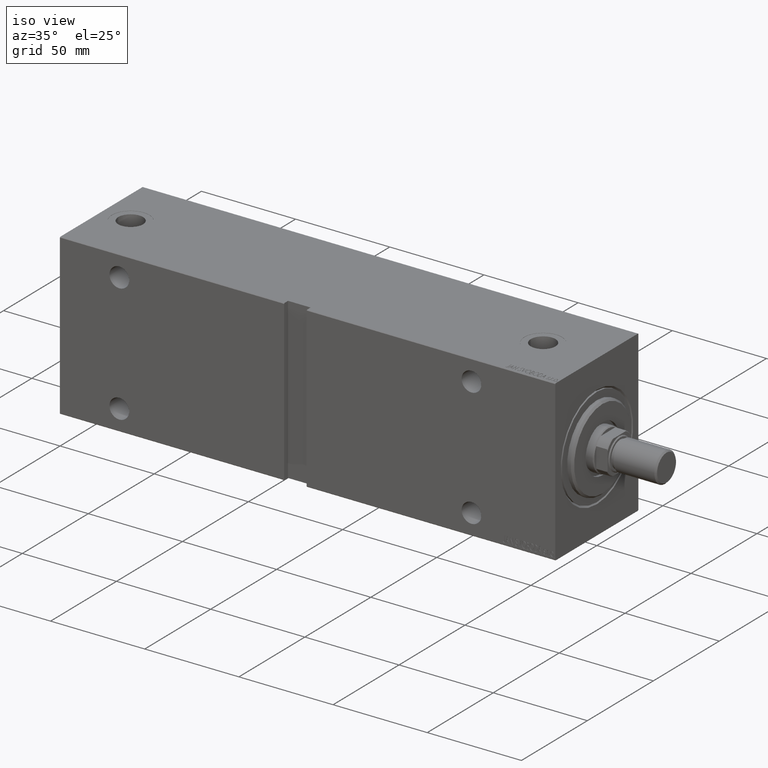
[diagram: clean part render]
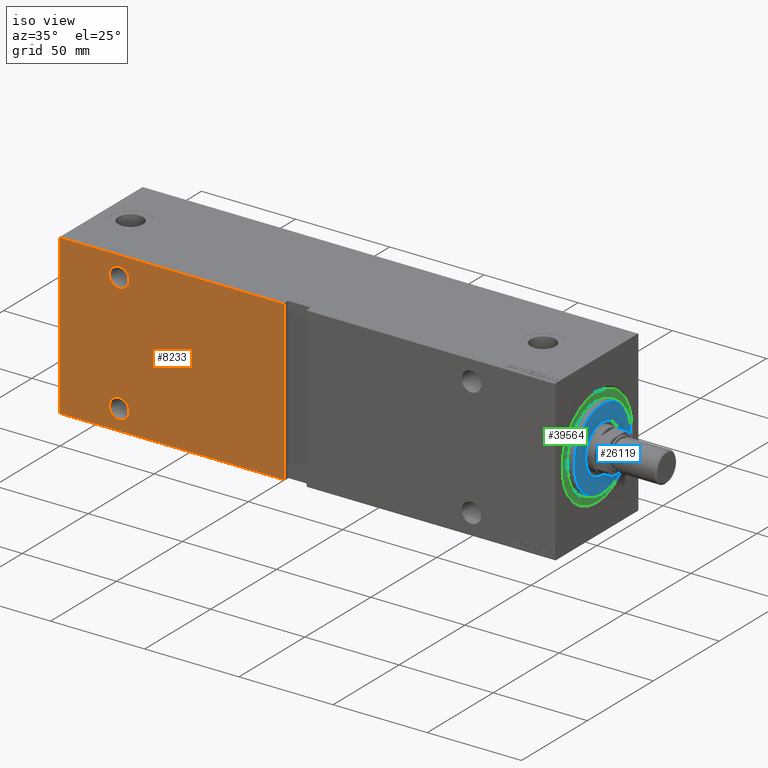
[diagram: same view with three faces highlighted in distinct colors, each labeled with its STEP entity id]
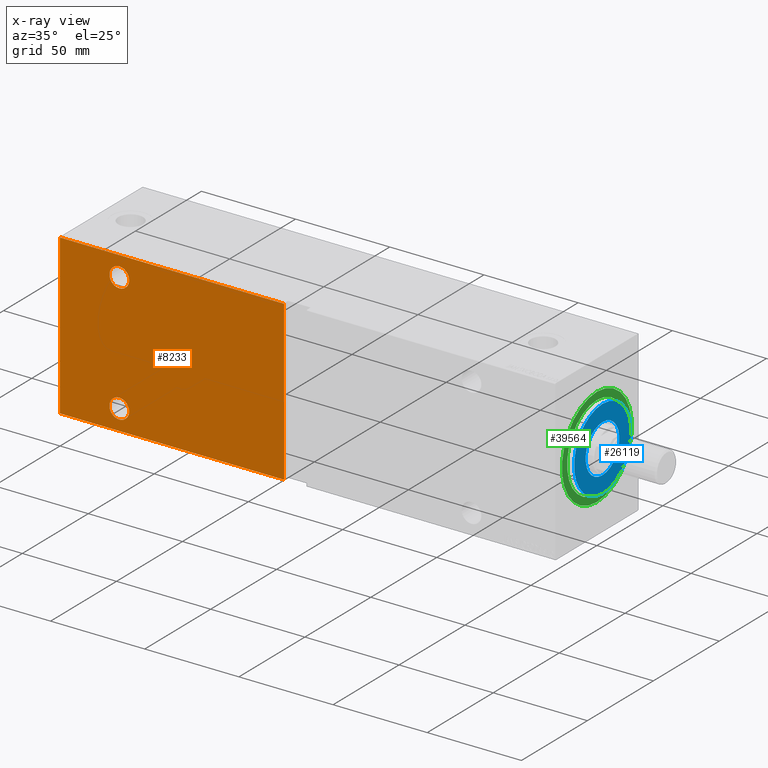
[diagram: x-ray of the same camera — body ghosted, the three highlighted faces saturated]
A machine part, iso view with three faces highlighted in distinct colors.
The next image is the same camera in x-ray (body ghosted, the three faces saturated) — at least one of them is partly hidden behind the body in this view.
Their STEP definitions:

[orange] entity #8233 — the highlighted planar face has unit normal (-0, 1, -0).
#56 = VERTEX_POINT ( 'NONE', #19333 ) ;
#656 = VECTOR ( 'NONE', #2430, 1000.000000000000000 ) ;
#840 = DIRECTION ( 'NONE',  ( 0.000000000000000000, 0.000000000000000000, -1.000000000000000000 ) ) ;
#895 = FACE_OUTER_BOUND ( 'NONE', #37573, .T. ) ;
#1253 = AXIS2_PLACEMENT_3D ( 'NONE', #14971, #41263, #840 ) ;
#1747 = EDGE_CURVE ( 'NONE', #16985, #24470, #22553, .T. ) ;
#2035 = CARTESIAN_POINT ( 'NONE',  ( 231.4999999999999716, 31.50000000000000000, 26.25000000000000355 ) ) ;
#2430 = DIRECTION ( 'NONE',  ( -0.000000000000000000, 1.632680918566406793E-16, -1.000000000000000000 ) ) ;
#4429 = DIRECTION ( 'NONE',  ( 0.000000000000000000, 1.632680918566406054E-16, -1.000000000000000000 ) ) ;
#4494 = CARTESIAN_POINT ( 'NONE',  ( 263.0000000000000000, 31.50000000000000000, 42.19999999999998863 ) ) ;
#4813 = CARTESIAN_POINT ( 'NONE',  ( 263.0000000000000000, 31.50000000000001421, -42.20000000000001705 ) ) ;
#5462 = VERTEX_POINT ( 'NONE', #2035 ) ;
#6749 = ORIENTED_EDGE ( 'NONE', *, *, #34439, .T. ) ;
#6797 = EDGE_CURVE ( 'NONE', #5462, #20673, #38903, .T. ) ;
#7070 = VECTOR ( 'NONE', #20496, 1000.000000000000000 ) ;
#7599 = CIRCLE ( 'NONE', #1253, 5.250000000000004441 ) ;
#7997 = CARTESIAN_POINT ( 'NONE',  ( 144.0000000000000284, 31.50000000000001421, -42.20000000000001705 ) ) ;
#8233 = ADVANCED_FACE ( 'NONE', ( #8381, #21222, #895 ), #38016, .F. ) ;
#8381 = FACE_BOUND ( 'NONE', #37874, .T. ) ;
#10274 = CARTESIAN_POINT ( 'NONE',  ( 231.5000000000000284, 31.50000000000001421, -31.49999999999999289 ) ) ;
#11087 = EDGE_CURVE ( 'NONE', #16985, #23923, #25387, .T. ) ;
#11238 = DIRECTION ( 'NONE',  ( 1.000000000000000000, 0.000000000000000000, 0.000000000000000000 ) ) ;
#11692 = VERTEX_POINT ( 'NONE', #39403 ) ;
#12201 = EDGE_CURVE ( 'NONE', #56, #11692, #23514, .T. ) ;
#13976 = DIRECTION ( 'NONE',  ( 0.000000000000000000, 0.000000000000000000, -1.000000000000000000 ) ) ;
#14971 = CARTESIAN_POINT ( 'NONE',  ( 231.4999999999999716, 31.50000000000000000, 31.50000000000000711 ) ) ;
#15219 = CARTESIAN_POINT ( 'NONE',  ( 231.5000000000000284, 31.50000000000001421, -31.49999999999999289 ) ) ;
#15241 = ORIENTED_EDGE ( 'NONE', *, *, #11087, .T. ) ;
#15448 = DIRECTION ( 'NONE',  ( 0.000000000000000000, 0.000000000000000000, -1.000000000000000000 ) ) ;
#16586 = ORIENTED_EDGE ( 'NONE', *, *, #42054, .T. ) ;
#16726 = CARTESIAN_POINT ( 'NONE',  ( 263.0000000000000000, 31.50000000000001421, -42.50000000000000711 ) ) ;
#16985 = VERTEX_POINT ( 'NONE', #32088 ) ;
#17081 = DIRECTION ( 'NONE',  ( 0.000000000000000000, -1.000000000000000000, -1.632680918566406054E-16 ) ) ;
#17244 = ORIENTED_EDGE ( 'NONE', *, *, #32443, .T. ) ;
#18472 = LINE ( 'NONE', #21350, #18744 ) ;
#18744 = VECTOR ( 'NONE', #22001, 1000.000000000000000 ) ;
#19333 = CARTESIAN_POINT ( 'NONE',  ( 231.5000000000000284, 31.50000000000001421, -26.24999999999998934 ) ) ;
#19438 = ORIENTED_EDGE ( 'NONE', *, *, #29843, .F. ) ;
#20046 = LINE ( 'NONE', #16726, #7070 ) ;
#20496 = DIRECTION ( 'NONE',  ( 0.000000000000000000, -1.632680918566406300E-16, 1.000000000000000000 ) ) ;
#20673 = VERTEX_POINT ( 'NONE', #36108 ) ;
#21222 = FACE_BOUND ( 'NONE', #34156, .T. ) ;
#21350 = CARTESIAN_POINT ( 'NONE',  ( 263.0000000000000000, 31.50000000000001421, -42.20000000000001705 ) ) ;
#22001 = DIRECTION ( 'NONE',  ( -1.000000000000000000, 0.000000000000000000, 0.000000000000000000 ) ) ;
#22058 = CARTESIAN_POINT ( 'NONE',  ( 263.0000000000000000, 31.50000000000000000, 42.19999999999998863 ) ) ;
#22553 = LINE ( 'NONE', #43285, #656 ) ;
#23354 = VERTEX_POINT ( 'NONE', #4813 ) ;
#23514 = CIRCLE ( 'NONE', #29163, 5.250000000000004441 ) ;
#23923 = VERTEX_POINT ( 'NONE', #4494 ) ;
#24470 = VERTEX_POINT ( 'NONE', #7997 ) ;
#25148 = CIRCLE ( 'NONE', #36420, 5.250000000000004441 ) ;
#25387 = LINE ( 'NONE', #22058, #39024 ) ;
#26265 = DIRECTION ( 'NONE',  ( 0.000000000000000000, -1.000000000000000000, -1.632680918566406054E-16 ) ) ;
#29163 = AXIS2_PLACEMENT_3D ( 'NONE', #15219, #26265, #15448 ) ;
#29843 = EDGE_CURVE ( 'NONE', #23354, #23923, #20046, .T. ) ;
#30413 = ORIENTED_EDGE ( 'NONE', *, *, #1747, .F. ) ;
#30628 = DIRECTION ( 'NONE',  ( 0.000000000000000000, -1.000000000000000000, -1.632680918566406054E-16 ) ) ;
#30776 = CARTESIAN_POINT ( 'NONE',  ( 231.4999999999999716, 31.50000000000000000, 31.50000000000000711 ) ) ;
#31602 = DIRECTION ( 'NONE',  ( 0.000000000000000000, -1.000000000000000000, -1.632680918566406054E-16 ) ) ;
#32088 = CARTESIAN_POINT ( 'NONE',  ( 144.0000000000000284, 31.50000000000000000, 42.19999999999998153 ) ) ;
#32443 = EDGE_CURVE ( 'NONE', #23354, #24470, #18472, .T. ) ;
#34156 = EDGE_LOOP ( 'NONE', ( #16586, #36947 ) ) ;
#34439 = EDGE_CURVE ( 'NONE', #11692, #56, #25148, .T. ) ;
#36108 = CARTESIAN_POINT ( 'NONE',  ( 231.4999999999999716, 31.50000000000000000, 36.75000000000001421 ) ) ;
#36420 = AXIS2_PLACEMENT_3D ( 'NONE', #10274, #30628, #43650 ) ;
#36947 = ORIENTED_EDGE ( 'NONE', *, *, #6797, .T. ) ;
#37552 = AXIS2_PLACEMENT_3D ( 'NONE', #38443, #31602, #4429 ) ;
#37573 = EDGE_LOOP ( 'NONE', ( #19438, #17244, #30413, #15241 ) ) ;
#37874 = EDGE_LOOP ( 'NONE', ( #42715, #6749 ) ) ;
#38016 = PLANE ( 'NONE',  #37552 ) ;
#38443 = CARTESIAN_POINT ( 'NONE',  ( 263.0000000000000000, 31.50000000000001421, -42.50000000000000711 ) ) ;
#38903 = CIRCLE ( 'NONE', #42388, 5.250000000000004441 ) ;
#39024 = VECTOR ( 'NONE', #11238, 1000.000000000000000 ) ;
#39403 = CARTESIAN_POINT ( 'NONE',  ( 231.5000000000000284, 31.50000000000001421, -36.75000000000000000 ) ) ;
#41263 = DIRECTION ( 'NONE',  ( 0.000000000000000000, -1.000000000000000000, -1.632680918566406054E-16 ) ) ;
#42054 = EDGE_CURVE ( 'NONE', #20673, #5462, #7599, .T. ) ;
#42388 = AXIS2_PLACEMENT_3D ( 'NONE', #30776, #17081, #13976 ) ;
#42715 = ORIENTED_EDGE ( 'NONE', *, *, #12201, .T. ) ;
#43285 = CARTESIAN_POINT ( 'NONE',  ( 144.0000000000000284, 31.50000000000001421, -42.49999999999998579 ) ) ;
#43650 = DIRECTION ( 'NONE',  ( 0.000000000000000000, 0.000000000000000000, -1.000000000000000000 ) ) ;

[blue] entity #26119 — the highlighted planar face has unit normal (1, 0, 0).
#4391 = CIRCLE ( 'NONE', #14291, 21.50000000000001066 ) ;
#5457 = EDGE_CURVE ( 'NONE', #23774, #32251, #25987, .T. ) ;
#5569 = DIRECTION ( 'NONE',  ( 0.000000000000000000, 0.000000000000000000, -1.000000000000000000 ) ) ;
#6046 = CARTESIAN_POINT ( 'NONE',  ( 3.000000000000000000, 1.561424668912874914E-15, -12.75000000000000000 ) ) ;
#7968 = CARTESIAN_POINT ( 'NONE',  ( 3.000000000000000000, 0.000000000000000000, 12.75000000000000000 ) ) ;
#8135 = PLANE ( 'NONE',  #20394 ) ;
#9922 = EDGE_CURVE ( 'NONE', #33275, #23393, #4391, .T. ) ;
#13227 = ORIENTED_EDGE ( 'NONE', *, *, #5457, .T. ) ;
#13513 = DIRECTION ( 'NONE',  ( 0.000000000000000000, 0.000000000000000000, -1.000000000000000000 ) ) ;
#14291 = AXIS2_PLACEMENT_3D ( 'NONE', #27660, #20141, #13513 ) ;
#14786 = CARTESIAN_POINT ( 'NONE',  ( 3.000000000000000000, 0.000000000000000000, 0.000000000000000000 ) ) ;
#14998 = FACE_BOUND ( 'NONE', #40814, .T. ) ;
#15004 = DIRECTION ( 'NONE',  ( -1.000000000000000000, 0.000000000000000000, -0.000000000000000000 ) ) ;
#16285 = EDGE_CURVE ( 'NONE', #23393, #33275, #16686, .T. ) ;
#16436 = ORIENTED_EDGE ( 'NONE', *, *, #16285, .T. ) ;
#16686 = CIRCLE ( 'NONE', #41392, 21.50000000000001066 ) ;
#19410 = CARTESIAN_POINT ( 'NONE',  ( 3.000000000000000000, 0.000000000000000000, 21.50000000000001066 ) ) ;
#20141 = DIRECTION ( 'NONE',  ( 1.000000000000000000, -0.000000000000000000, 0.000000000000000000 ) ) ;
#20394 = AXIS2_PLACEMENT_3D ( 'NONE', #14786, #21621, #28493 ) ;
#20851 = EDGE_LOOP ( 'NONE', ( #38385, #16436 ) ) ;
#21621 = DIRECTION ( 'NONE',  ( 1.000000000000000000, -0.000000000000000000, 0.000000000000000000 ) ) ;
#22076 = CARTESIAN_POINT ( 'NONE',  ( 3.000000000000000000, 0.000000000000000000, 0.000000000000000000 ) ) ;
#23393 = VERTEX_POINT ( 'NONE', #39687 ) ;
#23774 = VERTEX_POINT ( 'NONE', #6046 ) ;
#23967 = AXIS2_PLACEMENT_3D ( 'NONE', #22076, #15004, #41946 ) ;
#25164 = FACE_OUTER_BOUND ( 'NONE', #20851, .T. ) ;
#25987 = CIRCLE ( 'NONE', #36570, 12.75000000000000000 ) ;
#26119 = ADVANCED_FACE ( 'NONE', ( #25164, #14998 ), #8135, .T. ) ;
#26488 = CARTESIAN_POINT ( 'NONE',  ( 3.000000000000000000, 0.000000000000000000, 0.000000000000000000 ) ) ;
#27025 = EDGE_CURVE ( 'NONE', #32251, #23774, #32408, .T. ) ;
#27660 = CARTESIAN_POINT ( 'NONE',  ( 3.000000000000000000, 0.000000000000000000, 0.000000000000000000 ) ) ;
#28493 = DIRECTION ( 'NONE',  ( 0.000000000000000000, 0.000000000000000000, -1.000000000000000000 ) ) ;
#30016 = DIRECTION ( 'NONE',  ( 1.000000000000000000, -0.000000000000000000, 0.000000000000000000 ) ) ;
#32251 = VERTEX_POINT ( 'NONE', #7968 ) ;
#32312 = CARTESIAN_POINT ( 'NONE',  ( 3.000000000000000000, 0.000000000000000000, 0.000000000000000000 ) ) ;
#32408 = CIRCLE ( 'NONE', #23967, 12.75000000000000000 ) ;
#33275 = VERTEX_POINT ( 'NONE', #19410 ) ;
#36332 = ORIENTED_EDGE ( 'NONE', *, *, #27025, .T. ) ;
#36570 = AXIS2_PLACEMENT_3D ( 'NONE', #32312, #42245, #5569 ) ;
#38385 = ORIENTED_EDGE ( 'NONE', *, *, #9922, .T. ) ;
#39687 = CARTESIAN_POINT ( 'NONE',  ( 3.000000000000000000, 2.694222958124177993E-15, -21.50000000000001066 ) ) ;
#40814 = EDGE_LOOP ( 'NONE', ( #36332, #13227 ) ) ;
#41392 = AXIS2_PLACEMENT_3D ( 'NONE', #26488, #30016, #43050 ) ;
#41946 = DIRECTION ( 'NONE',  ( 0.000000000000000000, 0.000000000000000000, -1.000000000000000000 ) ) ;
#42245 = DIRECTION ( 'NONE',  ( -1.000000000000000000, 0.000000000000000000, -0.000000000000000000 ) ) ;
#43050 = DIRECTION ( 'NONE',  ( 0.000000000000000000, 0.000000000000000000, -1.000000000000000000 ) ) ;

[green] entity #39564 — the highlighted planar face has unit normal (1, 0, 0).
#755 = DIRECTION ( 'NONE',  ( 1.000000000000000000, -0.000000000000000000, 0.000000000000000000 ) ) ;
#1024 = VERTEX_POINT ( 'NONE', #41433 ) ;
#1506 = EDGE_LOOP ( 'NONE', ( #7345, #31417 ) ) ;
#2235 = DIRECTION ( 'NONE',  ( 0.000000000000000000, 0.000000000000000000, -1.000000000000000000 ) ) ;
#3575 = EDGE_CURVE ( 'NONE', #11193, #1024, #15386, .T. ) ;
#4925 = DIRECTION ( 'NONE',  ( 1.000000000000000000, 0.000000000000000000, 0.000000000000000000 ) ) ;
#5546 = DIRECTION ( 'NONE',  ( 1.000000000000000000, -0.000000000000000000, 0.000000000000000000 ) ) ;
#6107 = CIRCLE ( 'NONE', #11025, 26.50000000000000355 ) ;
#6340 = ORIENTED_EDGE ( 'NONE', *, *, #34986, .T. ) ;
#7345 = ORIENTED_EDGE ( 'NONE', *, *, #25425, .F. ) ;
#7822 = DIRECTION ( 'NONE',  ( 0.000000000000000000, 0.000000000000000000, -1.000000000000000000 ) ) ;
#8185 = FACE_BOUND ( 'NONE', #1506, .T. ) ;
#9743 = CIRCLE ( 'NONE', #21050, 22.50000000000000355 ) ;
#11025 = AXIS2_PLACEMENT_3D ( 'NONE', #35192, #4925, #29017 ) ;
#11070 = FACE_OUTER_BOUND ( 'NONE', #36203, .T. ) ;
#11193 = VERTEX_POINT ( 'NONE', #15648 ) ;
#11693 = CIRCLE ( 'NONE', #26532, 26.50000000000000355 ) ;
#13938 = VERTEX_POINT ( 'NONE', #38970 ) ;
#14608 = DIRECTION ( 'NONE',  ( 0.000000000000000000, 0.000000000000000000, -1.000000000000000000 ) ) ;
#15386 = CIRCLE ( 'NONE', #38663, 22.50000000000000355 ) ;
#15648 = CARTESIAN_POINT ( 'NONE',  ( 0.000000000000000000, 2.755455298081545172E-15, -22.50000000000000355 ) ) ;
#16281 = VERTEX_POINT ( 'NONE', #39520 ) ;
#16571 = CARTESIAN_POINT ( 'NONE',  ( 0.000000000000000000, 0.000000000000000000, 0.000000000000000000 ) ) ;
#21050 = AXIS2_PLACEMENT_3D ( 'NONE', #37876, #755, #7822 ) ;
#25006 = CARTESIAN_POINT ( 'NONE',  ( 0.000000000000000000, 0.000000000000000000, 0.000000000000000000 ) ) ;
#25425 = EDGE_CURVE ( 'NONE', #1024, #11193, #9743, .T. ) ;
#26532 = AXIS2_PLACEMENT_3D ( 'NONE', #37906, #27971, #31078 ) ;
#27971 = DIRECTION ( 'NONE',  ( 1.000000000000000000, 0.000000000000000000, 0.000000000000000000 ) ) ;
#29017 = DIRECTION ( 'NONE',  ( 0.000000000000000000, 0.000000000000000000, -1.000000000000000000 ) ) ;
#31078 = DIRECTION ( 'NONE',  ( 0.000000000000000000, 0.000000000000000000, -1.000000000000000000 ) ) ;
#31417 = ORIENTED_EDGE ( 'NONE', *, *, #3575, .F. ) ;
#31637 = EDGE_CURVE ( 'NONE', #13938, #16281, #11693, .T. ) ;
#34986 = EDGE_CURVE ( 'NONE', #16281, #13938, #6107, .T. ) ;
#35192 = CARTESIAN_POINT ( 'NONE',  ( 0.000000000000000000, 0.000000000000000000, 0.000000000000000000 ) ) ;
#36203 = EDGE_LOOP ( 'NONE', ( #39263, #6340 ) ) ;
#37615 = PLANE ( 'NONE',  #43614 ) ;
#37876 = CARTESIAN_POINT ( 'NONE',  ( 0.000000000000000000, 0.000000000000000000, 0.000000000000000000 ) ) ;
#37906 = CARTESIAN_POINT ( 'NONE',  ( 0.000000000000000000, 0.000000000000000000, 0.000000000000000000 ) ) ;
#38663 = AXIS2_PLACEMENT_3D ( 'NONE', #16571, #5546, #2235 ) ;
#38970 = CARTESIAN_POINT ( 'NONE',  ( 0.000000000000000000, 0.000000000000000000, -26.50000000000000355 ) ) ;
#39263 = ORIENTED_EDGE ( 'NONE', *, *, #31637, .T. ) ;
#39520 = CARTESIAN_POINT ( 'NONE',  ( 0.000000000000000000, 3.245314017740486554E-15, 26.50000000000000355 ) ) ;
#39564 = ADVANCED_FACE ( 'NONE', ( #8185, #11070 ), #37615, .T. ) ;
#41433 = CARTESIAN_POINT ( 'NONE',  ( 0.000000000000000000, 0.000000000000000000, 22.50000000000000355 ) ) ;
#41562 = DIRECTION ( 'NONE',  ( 1.000000000000000000, 0.000000000000000000, 0.000000000000000000 ) ) ;
#43614 = AXIS2_PLACEMENT_3D ( 'NONE', #25006, #41562, #14608 ) ;